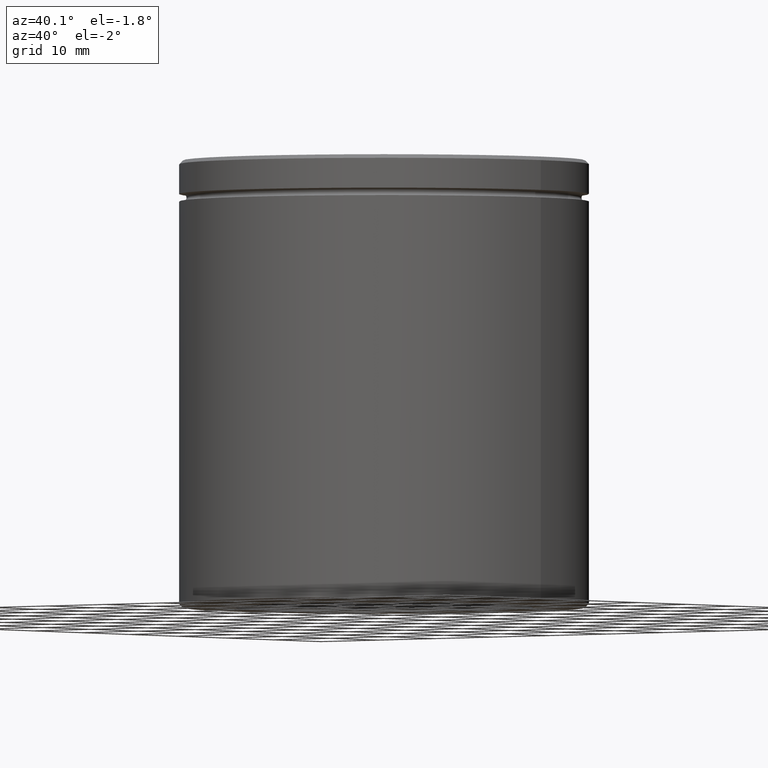
[diagram: clean part render]
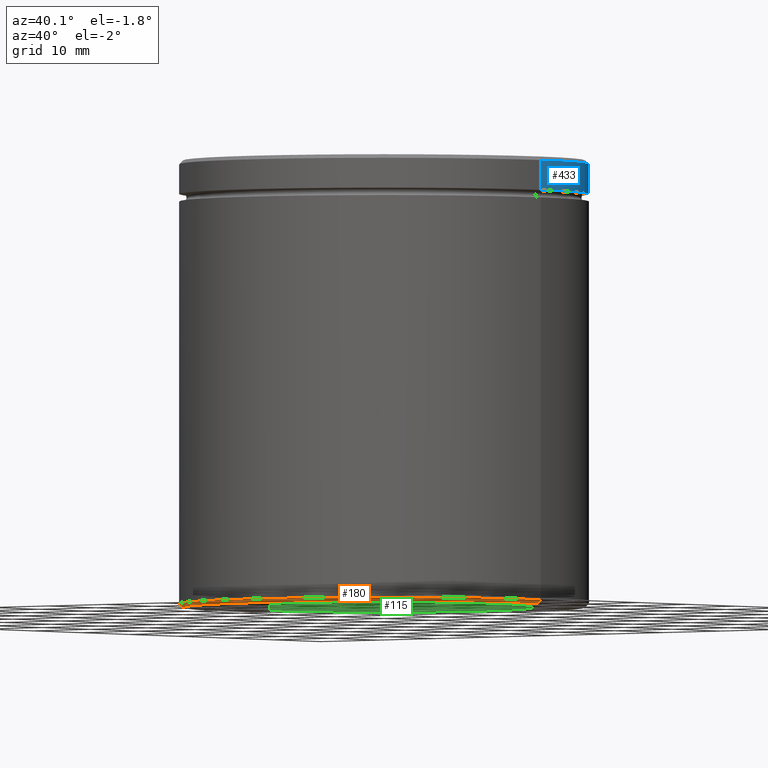
[diagram: same view with three faces highlighted in distinct colors, each labeled with its STEP entity id]
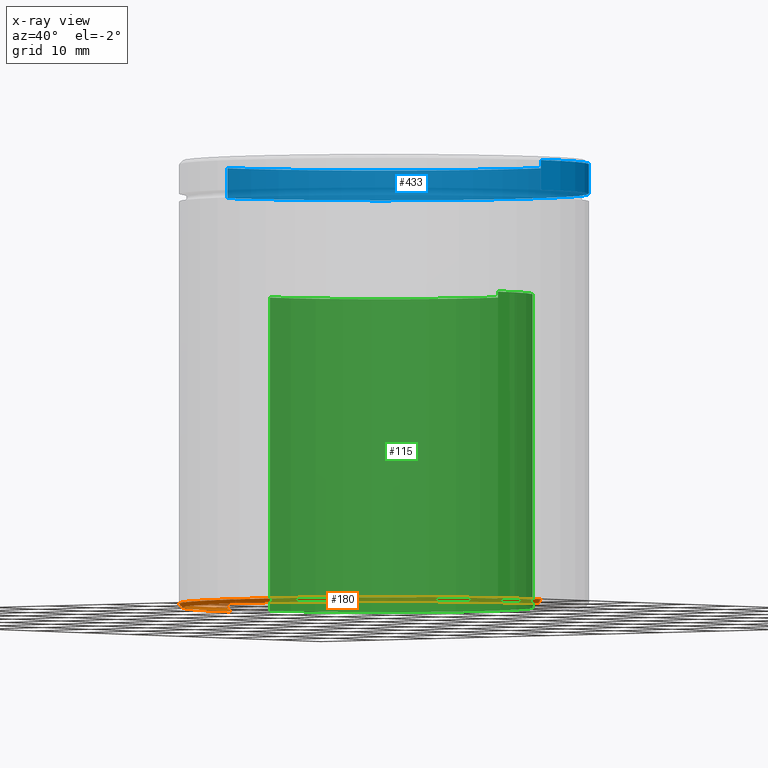
[diagram: x-ray of the same camera — body ghosted, the three highlighted faces saturated]
A machine part, auxiliary view with three faces highlighted in distinct colors.
The next image is the same camera in x-ray (body ghosted, the three faces saturated) — at least one of them is partly hidden behind the body in this view.
Their STEP definitions:

[orange] entity #180 — the highlighted conical surface has half-angle 45 deg.
#1 = ORIENTED_EDGE ( 'NONE', *, *, #166, .F. ) ;
#30 = CARTESIAN_POINT ( 'NONE',  ( 27.50000000000000000, 0.000000000000000000, -59.50000000000001421 ) ) ;
#41 = ORIENTED_EDGE ( 'NONE', *, *, #531, .F. ) ;
#53 = LINE ( 'NONE', #235, #420 ) ;
#56 = ORIENTED_EDGE ( 'NONE', *, *, #67, .T. ) ;
#65 = EDGE_CURVE ( 'NONE', #463, #211, #151, .T. ) ;
#67 = EDGE_CURVE ( 'NONE', #468, #211, #381, .T. ) ;
#105 = EDGE_LOOP ( 'NONE', ( #41, #1, #56, #303 ) ) ;
#117 = CARTESIAN_POINT ( 'NONE',  ( 0.000000000000000000, 0.000000000000000000, -60.00000000000000000 ) ) ;
#124 = DIRECTION ( 'NONE',  ( 1.000000000000000000, 0.000000000000000000, 0.000000000000000000 ) ) ;
#127 = AXIS2_PLACEMENT_3D ( 'NONE', #373, #549, #157 ) ;
#151 = CIRCLE ( 'NONE', #127, 27.50000000000000000 ) ;
#157 = DIRECTION ( 'NONE',  ( -1.000000000000000000, 0.000000000000000000, 0.000000000000000000 ) ) ;
#166 = EDGE_CURVE ( 'NONE', #468, #552, #258, .T. ) ;
#180 = ADVANCED_FACE ( 'NONE', ( #256 ), #323, .T. ) ;
#200 = CARTESIAN_POINT ( 'NONE',  ( -27.50000000000000000, 3.367778697655221307E-15, -59.50000000000001421 ) ) ;
#211 = VERTEX_POINT ( 'NONE', #475 ) ;
#235 = CARTESIAN_POINT ( 'NONE',  ( -27.50000000000000000, 3.367778697655221307E-15, -59.50000000000001421 ) ) ;
#256 = FACE_OUTER_BOUND ( 'NONE', #105, .T. ) ;
#258 = CIRCLE ( 'NONE', #283, 27.00000000000002487 ) ;
#259 = DIRECTION ( 'NONE',  ( -0.000000000000000000, -0.000000000000000000, 1.000000000000000000 ) ) ;
#261 = DIRECTION ( 'NONE',  ( -1.000000000000000000, 0.000000000000000000, 0.000000000000000000 ) ) ;
#283 = AXIS2_PLACEMENT_3D ( 'NONE', #117, #293, #261 ) ;
#293 = DIRECTION ( 'NONE',  ( 0.000000000000000000, 0.000000000000000000, -1.000000000000000000 ) ) ;
#303 = ORIENTED_EDGE ( 'NONE', *, *, #65, .F. ) ;
#323 = CONICAL_SURFACE ( 'NONE', #414, 27.50000000000000000, 0.7853981633974378429 ) ;
#325 = CARTESIAN_POINT ( 'NONE',  ( 27.00000000000002487, 0.000000000000000000, -60.00000000000000000 ) ) ;
#373 = CARTESIAN_POINT ( 'NONE',  ( 0.000000000000000000, 0.000000000000000000, -59.50000000000001421 ) ) ;
#381 = LINE ( 'NONE', #30, #445 ) ;
#398 = CARTESIAN_POINT ( 'NONE',  ( -27.00000000000002487, 3.337162527676539098E-15, -60.00000000000000000 ) ) ;
#409 = DIRECTION ( 'NONE',  ( -0.7071067811865401342, 8.659560562354842879E-17, 0.7071067811865549002 ) ) ;
#414 = AXIS2_PLACEMENT_3D ( 'NONE', #559, #259, #124 ) ;
#420 = VECTOR ( 'NONE', #409, 1000.000000000000000 ) ;
#445 = VECTOR ( 'NONE', #515, 1000.000000000000000 ) ;
#463 = VERTEX_POINT ( 'NONE', #200 ) ;
#468 = VERTEX_POINT ( 'NONE', #325 ) ;
#475 = CARTESIAN_POINT ( 'NONE',  ( 27.50000000000000000, 0.000000000000000000, -59.50000000000001421 ) ) ;
#515 = DIRECTION ( 'NONE',  ( 0.7071067811865401342, 0.000000000000000000, 0.7071067811865549002 ) ) ;
#531 = EDGE_CURVE ( 'NONE', #552, #463, #53, .T. ) ;
#549 = DIRECTION ( 'NONE',  ( -0.000000000000000000, -0.000000000000000000, 1.000000000000000000 ) ) ;
#552 = VERTEX_POINT ( 'NONE', #398 ) ;
#559 = CARTESIAN_POINT ( 'NONE',  ( 0.000000000000000000, 0.000000000000000000, -59.50000000000001421 ) ) ;

[blue] entity #433 — the highlighted cylindrical surface (partial cylindrical patch) has radius 27.5 mm, axis along (-0, -0, 1).
#3 = VERTEX_POINT ( 'NONE', #329 ) ;
#14 = FACE_OUTER_BOUND ( 'NONE', #50, .T. ) ;
#24 = VERTEX_POINT ( 'NONE', #539 ) ;
#50 = EDGE_LOOP ( 'NONE', ( #228, #263, #556, #113 ) ) ;
#96 = DIRECTION ( 'NONE',  ( -0.000000000000000000, -0.000000000000000000, 1.000000000000000000 ) ) ;
#99 = AXIS2_PLACEMENT_3D ( 'NONE', #320, #548, #281 ) ;
#110 = VECTOR ( 'NONE', #96, 1000.000000000000000 ) ;
#113 = ORIENTED_EDGE ( 'NONE', *, *, #327, .F. ) ;
#141 = LINE ( 'NONE', #534, #110 ) ;
#173 = VECTOR ( 'NONE', #177, 1000.000000000000000 ) ;
#177 = DIRECTION ( 'NONE',  ( -0.000000000000000000, -0.000000000000000000, 1.000000000000000000 ) ) ;
#181 = VERTEX_POINT ( 'NONE', #343 ) ;
#182 = AXIS2_PLACEMENT_3D ( 'NONE', #541, #203, #503 ) ;
#203 = DIRECTION ( 'NONE',  ( -0.000000000000000000, -0.000000000000000000, 1.000000000000000000 ) ) ;
#228 = ORIENTED_EDGE ( 'NONE', *, *, #516, .T. ) ;
#251 = EDGE_CURVE ( 'NONE', #461, #181, #387, .T. ) ;
#263 = ORIENTED_EDGE ( 'NONE', *, *, #547, .T. ) ;
#271 = DIRECTION ( 'NONE',  ( 0.000000000000000000, 0.000000000000000000, -1.000000000000000000 ) ) ;
#281 = DIRECTION ( 'NONE',  ( 1.000000000000000000, 0.000000000000000000, 0.000000000000000000 ) ) ;
#320 = CARTESIAN_POINT ( 'NONE',  ( 0.000000000000000000, 0.000000000000000000, -4.500000000000000888 ) ) ;
#327 = EDGE_CURVE ( 'NONE', #3, #181, #141, .T. ) ;
#329 = CARTESIAN_POINT ( 'NONE',  ( 27.50000000000000000, 0.000000000000000000, -4.500000000000000888 ) ) ;
#343 = CARTESIAN_POINT ( 'NONE',  ( 27.50000000000000000, 0.000000000000000000, -0.5000000000000143219 ) ) ;
#363 = DIRECTION ( 'NONE',  ( 1.000000000000000000, 0.000000000000000000, 0.000000000000000000 ) ) ;
#387 = CIRCLE ( 'NONE', #394, 27.50000000000000000 ) ;
#394 = AXIS2_PLACEMENT_3D ( 'NONE', #484, #271, #363 ) ;
#431 = LINE ( 'NONE', #565, #173 ) ;
#433 = ADVANCED_FACE ( 'NONE', ( #14 ), #545, .T. ) ;
#461 = VERTEX_POINT ( 'NONE', #550 ) ;
#484 = CARTESIAN_POINT ( 'NONE',  ( 0.000000000000000000, 0.000000000000000000, -0.5000000000000143219 ) ) ;
#503 = DIRECTION ( 'NONE',  ( 1.000000000000000000, 0.000000000000000000, 0.000000000000000000 ) ) ;
#516 = EDGE_CURVE ( 'NONE', #3, #24, #542, .T. ) ;
#534 = CARTESIAN_POINT ( 'NONE',  ( 27.50000000000000000, 0.000000000000000000, 0.000000000000000000 ) ) ;
#539 = CARTESIAN_POINT ( 'NONE',  ( -27.50000000000000000, 3.367778697655221307E-15, -4.500000000000000888 ) ) ;
#541 = CARTESIAN_POINT ( 'NONE',  ( 0.000000000000000000, 0.000000000000000000, 0.000000000000000000 ) ) ;
#542 = CIRCLE ( 'NONE', #99, 27.50000000000000000 ) ;
#545 = CYLINDRICAL_SURFACE ( 'NONE', #182, 27.50000000000000000 ) ;
#547 = EDGE_CURVE ( 'NONE', #24, #461, #431, .T. ) ;
#548 = DIRECTION ( 'NONE',  ( -0.000000000000000000, -0.000000000000000000, 1.000000000000000000 ) ) ;
#550 = CARTESIAN_POINT ( 'NONE',  ( -27.50000000000000000, 3.367778697655221307E-15, -0.5000000000000143219 ) ) ;
#556 = ORIENTED_EDGE ( 'NONE', *, *, #251, .T. ) ;
#565 = CARTESIAN_POINT ( 'NONE',  ( -27.50000000000000000, 3.367778697655221307E-15, 0.000000000000000000 ) ) ;

[green] entity #115 — the highlighted cylindrical surface (partial cylindrical patch) has radius 20 mm, axis along (-0, -0, -1).
#8 = LINE ( 'NONE', #197, #436 ) ;
#13 = EDGE_CURVE ( 'NONE', #356, #535, #221, .T. ) ;
#31 = DIRECTION ( 'NONE',  ( -1.000000000000000000, 0.000000000000000000, 0.000000000000000000 ) ) ;
#58 = DIRECTION ( 'NONE',  ( -1.000000000000000000, 0.000000000000000000, 0.000000000000000000 ) ) ;
#66 = ORIENTED_EDGE ( 'NONE', *, *, #382, .T. ) ;
#78 = CIRCLE ( 'NONE', #377, 20.00000000000000000 ) ;
#84 = VERTEX_POINT ( 'NONE', #257 ) ;
#115 = ADVANCED_FACE ( 'NONE', ( #299 ), #342, .F. ) ;
#155 = CARTESIAN_POINT ( 'NONE',  ( 0.000000000000000000, 0.000000000000000000, -60.00000000000000000 ) ) ;
#156 = DIRECTION ( 'NONE',  ( -0.000000000000000000, -0.000000000000000000, -1.000000000000000000 ) ) ;
#174 = CARTESIAN_POINT ( 'NONE',  ( 20.00000000000000000, 2.449293598294706119E-15, -17.99999999999999645 ) ) ;
#190 = EDGE_CURVE ( 'NONE', #84, #568, #78, .T. ) ;
#193 = CARTESIAN_POINT ( 'NONE',  ( -20.00000000000000000, 0.000000000000000000, -60.00000000000000000 ) ) ;
#197 = CARTESIAN_POINT ( 'NONE',  ( 20.00000000000000000, 2.449293598294706119E-15, -17.99999999999999645 ) ) ;
#206 = VECTOR ( 'NONE', #156, 1000.000000000000000 ) ;
#218 = CARTESIAN_POINT ( 'NONE',  ( 0.000000000000000000, 0.000000000000000000, -17.99999999999999645 ) ) ;
#221 = CIRCLE ( 'NONE', #232, 20.00000000000000000 ) ;
#232 = AXIS2_PLACEMENT_3D ( 'NONE', #155, #366, #58 ) ;
#257 = CARTESIAN_POINT ( 'NONE',  ( -20.00000000000000000, 0.000000000000000000, -17.99999999999999645 ) ) ;
#273 = CARTESIAN_POINT ( 'NONE',  ( -20.00000000000000000, 0.000000000000000000, -17.99999999999999645 ) ) ;
#299 = FACE_OUTER_BOUND ( 'NONE', #440, .T. ) ;
#311 = ORIENTED_EDGE ( 'NONE', *, *, #190, .F. ) ;
#342 = CYLINDRICAL_SURFACE ( 'NONE', #529, 20.00000000000000000 ) ;
#356 = VERTEX_POINT ( 'NONE', #193 ) ;
#366 = DIRECTION ( 'NONE',  ( 0.000000000000000000, 0.000000000000000000, -1.000000000000000000 ) ) ;
#372 = DIRECTION ( 'NONE',  ( -0.000000000000000000, -0.000000000000000000, -1.000000000000000000 ) ) ;
#377 = AXIS2_PLACEMENT_3D ( 'NONE', #218, #505, #423 ) ;
#382 = EDGE_CURVE ( 'NONE', #84, #356, #452, .T. ) ;
#407 = CARTESIAN_POINT ( 'NONE',  ( 20.00000000000000000, 2.449293598294706119E-15, -60.00000000000000000 ) ) ;
#423 = DIRECTION ( 'NONE',  ( -1.000000000000000000, 0.000000000000000000, 0.000000000000000000 ) ) ;
#425 = CARTESIAN_POINT ( 'NONE',  ( 0.000000000000000000, 0.000000000000000000, -17.99999999999999645 ) ) ;
#436 = VECTOR ( 'NONE', #372, 1000.000000000000000 ) ;
#440 = EDGE_LOOP ( 'NONE', ( #488, #311, #66, #453 ) ) ;
#452 = LINE ( 'NONE', #273, #206 ) ;
#453 = ORIENTED_EDGE ( 'NONE', *, *, #13, .T. ) ;
#479 = EDGE_CURVE ( 'NONE', #568, #535, #8, .T. ) ;
#488 = ORIENTED_EDGE ( 'NONE', *, *, #479, .F. ) ;
#505 = DIRECTION ( 'NONE',  ( 0.000000000000000000, 0.000000000000000000, -1.000000000000000000 ) ) ;
#507 = DIRECTION ( 'NONE',  ( -0.000000000000000000, -0.000000000000000000, -1.000000000000000000 ) ) ;
#529 = AXIS2_PLACEMENT_3D ( 'NONE', #425, #507, #31 ) ;
#535 = VERTEX_POINT ( 'NONE', #407 ) ;
#568 = VERTEX_POINT ( 'NONE', #174 ) ;